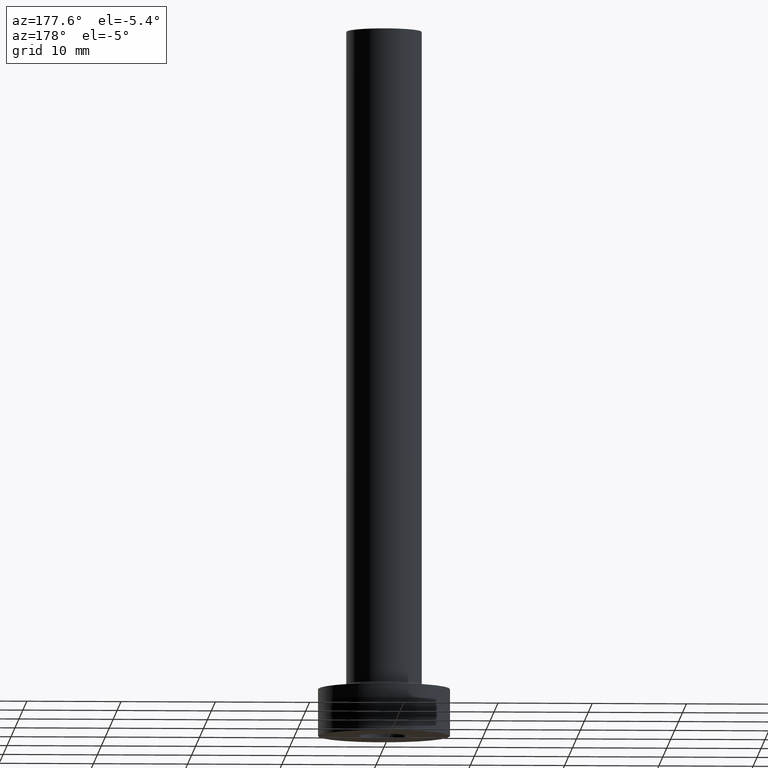
[diagram: clean part render]
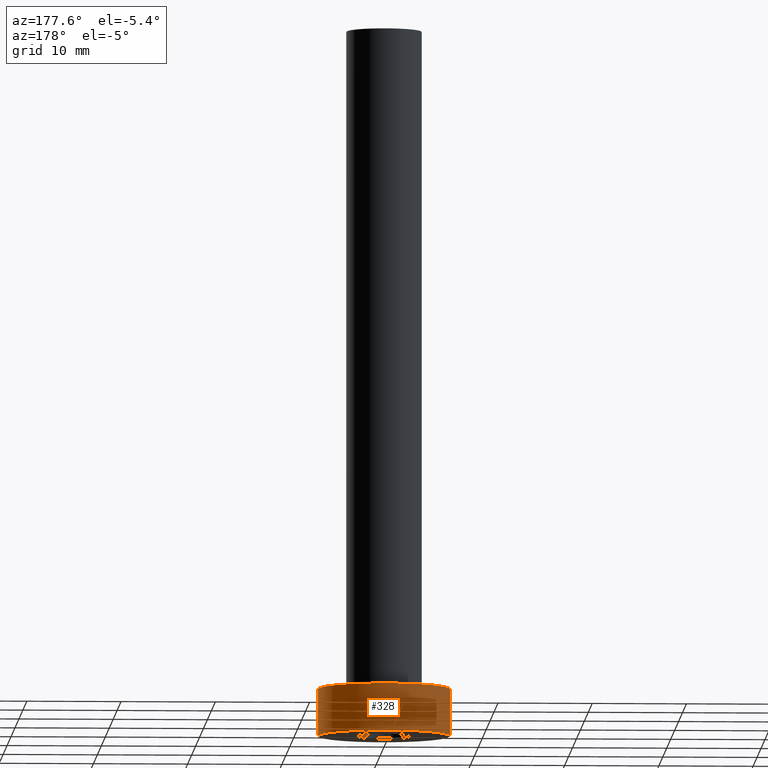
[diagram: same view with one face highlighted and labeled with its STEP entity id]
A machine part, auxiliary view. The second image highlights one B-rep face of the part: STEP entity #328.
In plain terms, the highlighted cylindrical surface (partial cylindrical patch) has radius 7 mm, axis along (-0, -0, -1).
Its self-contained STEP definition (entity closure, byte-faithful):
#40 = DIRECTION ( 'NONE',  ( 1.000000000000000000, 0.000000000000000000, 0.000000000000000000 ) ) ;
#42 = CARTESIAN_POINT ( 'NONE',  ( 0.000000000000000000, 0.000000000000000000, 0.000000000000000000 ) ) ;
#53 = LINE ( 'NONE', #452, #204 ) ;
#54 = VERTEX_POINT ( 'NONE', #58 ) ;
#58 = CARTESIAN_POINT ( 'NONE',  ( -7.000000000000000000, 0.000000000000000000, 5.000000000000000000 ) ) ;
#72 = CARTESIAN_POINT ( 'NONE',  ( -7.000000000000000000, 0.000000000000000000, 0.000000000000000000 ) ) ;
#74 = AXIS2_PLACEMENT_3D ( 'NONE', #80, #188, #40 ) ;
#78 = CARTESIAN_POINT ( 'NONE',  ( 7.000000000000000000, 8.572527594031473190E-16, 5.000000000000000000 ) ) ;
#80 = CARTESIAN_POINT ( 'NONE',  ( 0.000000000000000000, 0.000000000000000000, 5.000000000000000000 ) ) ;
#95 = CARTESIAN_POINT ( 'NONE',  ( 0.000000000000000000, 0.000000000000000000, 5.000000000000000000 ) ) ;
#127 = CARTESIAN_POINT ( 'NONE',  ( 7.000000000000000000, 8.572527594031473190E-16, 0.000000000000000000 ) ) ;
#165 = ORIENTED_EDGE ( 'NONE', *, *, #298, .T. ) ;
#188 = DIRECTION ( 'NONE',  ( 0.000000000000000000, 0.000000000000000000, 1.000000000000000000 ) ) ;
#196 = DIRECTION ( 'NONE',  ( -0.000000000000000000, -0.000000000000000000, -1.000000000000000000 ) ) ;
#197 = VERTEX_POINT ( 'NONE', #127 ) ;
#201 = ORIENTED_EDGE ( 'NONE', *, *, #396, .F. ) ;
#204 = VECTOR ( 'NONE', #196, 1000.000000000000000 ) ;
#215 = DIRECTION ( 'NONE',  ( -0.000000000000000000, -0.000000000000000000, -1.000000000000000000 ) ) ;
#220 = ORIENTED_EDGE ( 'NONE', *, *, #234, .T. ) ;
#228 = AXIS2_PLACEMENT_3D ( 'NONE', #95, #267, #407 ) ;
#229 = FACE_OUTER_BOUND ( 'NONE', #338, .T. ) ;
#234 = EDGE_CURVE ( 'NONE', #197, #354, #303, .T. ) ;
#236 = VERTEX_POINT ( 'NONE', #78 ) ;
#256 = LINE ( 'NONE', #295, #394 ) ;
#267 = DIRECTION ( 'NONE',  ( -0.000000000000000000, -0.000000000000000000, -1.000000000000000000 ) ) ;
#295 = CARTESIAN_POINT ( 'NONE',  ( -7.000000000000000000, 0.000000000000000000, 5.000000000000000000 ) ) ;
#298 = EDGE_CURVE ( 'NONE', #236, #197, #53, .T. ) ;
#303 = CIRCLE ( 'NONE', #355, 7.000000000000000000 ) ;
#323 = DIRECTION ( 'NONE',  ( 0.000000000000000000, 0.000000000000000000, 1.000000000000000000 ) ) ;
#328 = ADVANCED_FACE ( 'NONE', ( #229 ), #437, .T. ) ;
#338 = EDGE_LOOP ( 'NONE', ( #455, #165, #220, #201 ) ) ;
#354 = VERTEX_POINT ( 'NONE', #72 ) ;
#355 = AXIS2_PLACEMENT_3D ( 'NONE', #42, #323, #429 ) ;
#394 = VECTOR ( 'NONE', #215, 1000.000000000000000 ) ;
#396 = EDGE_CURVE ( 'NONE', #54, #354, #256, .T. ) ;
#407 = DIRECTION ( 'NONE',  ( -1.000000000000000000, 0.000000000000000000, 0.000000000000000000 ) ) ;
#429 = DIRECTION ( 'NONE',  ( 1.000000000000000000, 0.000000000000000000, 0.000000000000000000 ) ) ;
#437 = CYLINDRICAL_SURFACE ( 'NONE', #228, 7.000000000000000000 ) ;
#452 = CARTESIAN_POINT ( 'NONE',  ( 7.000000000000000000, 8.572527594031473190E-16, 5.000000000000000000 ) ) ;
#453 = CIRCLE ( 'NONE', #74, 7.000000000000000000 ) ;
#455 = ORIENTED_EDGE ( 'NONE', *, *, #458, .F. ) ;
#458 = EDGE_CURVE ( 'NONE', #236, #54, #453, .T. ) ;